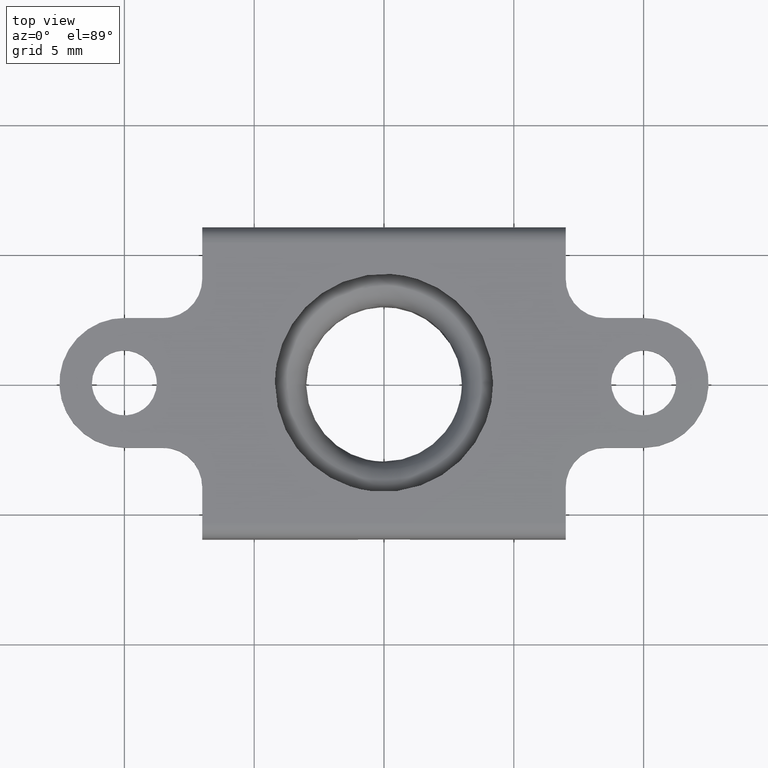
[diagram: clean part render]
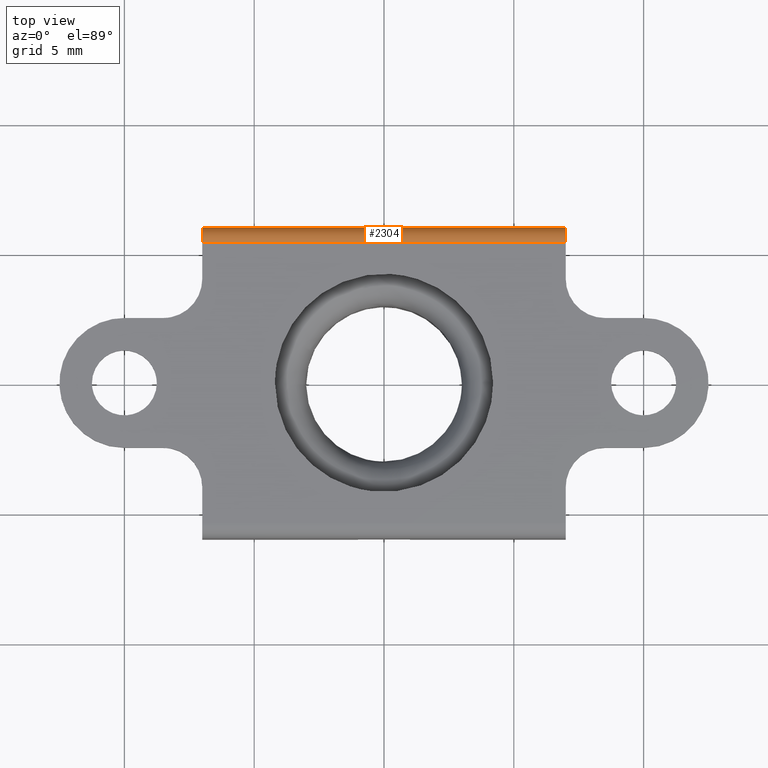
[diagram: same view with one face highlighted and labeled with its STEP entity id]
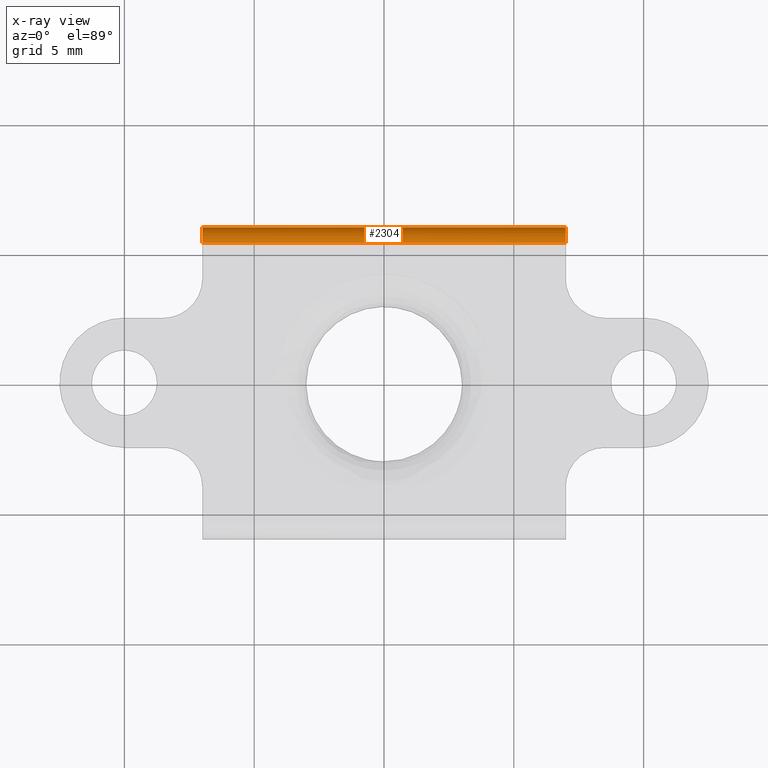
[diagram: x-ray of the same camera — body ghosted, the highlighted face saturated]
A machine part, top view. The second image highlights one B-rep face of the part: STEP entity #2304.
The next image is the same camera in x-ray: the body ghosted, the highlighted face saturated — about 0% of this face is hidden behind the body in this view.
In plain terms, the highlighted face is a freeform B-spline surface patch.
Its self-contained STEP definition (entity closure, byte-faithful):
#2244=CARTESIAN_POINT('',(-7.350000000000002,5.394764078700977,-0.000022846161497));
#2245=CARTESIAN_POINT('',(7.358750000000001,5.394764078700977,-0.000022846161497));
#2246=CARTESIAN_POINT('',(-7.350000000000001,6.038160805207053,0.005591992007727));
#2247=CARTESIAN_POINT('',(7.358750000000002,6.038160805207053,0.005591992007727));
#2248=CARTESIAN_POINT('',(-7.350000000000002,5.998880879053120,-0.636629123720915));
#2249=CARTESIAN_POINT('',(7.358750000000001,5.998880879053120,-0.636629123720915));
#2257=(BOUNDED_SURFACE()B_SPLINE_SURFACE(1,2,((#2244,#2246,#2248),(#2245,#2247,#2249)),.UNSPECIFIED.,.F.,.F.,.U.)B_SPLINE_SURFACE_WITH_KNOTS((2,2),(3,3),(0.0,14.708750000000000),(0.0,1.0),.UNSPECIFIED.)GEOMETRIC_REPRESENTATION_ITEM()RATIONAL_B_SPLINE_SURFACE(((1.0,0.681998360062499,1.0),(1.0,0.681998360062499,1.0)))REPRESENTATION_ITEM('')SURFACE());
#2258=CARTESIAN_POINT('',(-7.0,5.400000000000000,3.306437E-016));
#2259=VERTEX_POINT('',#2258);
#2260=CARTESIAN_POINT('',(-7.0,6.0,-0.600000000000000));
#2261=VERTEX_POINT('',#2260);
#2262=CARTESIAN_POINT('',(-7.0,5.400000000000000,0.0));
#2263=CARTESIAN_POINT('',(-6.999999999999999,6.0,0.0));
#2264=CARTESIAN_POINT('',(-7.0,6.0,-0.600000000000000));
#2272=(BOUNDED_CURVE()B_SPLINE_CURVE(2,(#2262,#2263,#2264),.UNSPECIFIED.,.F.,.U.)CURVE()GEOMETRIC_REPRESENTATION_ITEM()QUASI_UNIFORM_CURVE()RATIONAL_B_SPLINE_CURVE((1.0,0.707106781186547,1.0))REPRESENTATION_ITEM(''));
#2273=EDGE_CURVE('',#2259,#2261,#2272,.T.);
#2274=ORIENTED_EDGE('',*,*,#2273,.F.);
#2275=CARTESIAN_POINT('',(7.0,5.400000000000000,3.306437E-016));
#2276=VERTEX_POINT('',#2275);
#2277=CARTESIAN_POINT('',(7.0,5.400000000000000,3.306437E-016));
#2278=CARTESIAN_POINT('',(-7.0,5.400000000000000,3.306437E-016));
#2279=QUASI_UNIFORM_CURVE('',1,(#2277,#2278),.UNSPECIFIED.,.F.,.U.);
#2280=EDGE_CURVE('',#2276,#2259,#2279,.T.);
#2281=ORIENTED_EDGE('',*,*,#2280,.F.);
#2282=CARTESIAN_POINT('',(7.0,6.0,-0.600000000000000));
#2283=VERTEX_POINT('',#2282);
#2284=CARTESIAN_POINT('',(7.0,6.0,-0.600000000000000));
#2285=CARTESIAN_POINT('',(6.999999999999999,6.0,0.0));
#2286=CARTESIAN_POINT('',(7.0,5.400000000000000,0.0));
#2294=(BOUNDED_CURVE()B_SPLINE_CURVE(2,(#2284,#2285,#2286),.UNSPECIFIED.,.F.,.U.)CURVE()GEOMETRIC_REPRESENTATION_ITEM()QUASI_UNIFORM_CURVE()RATIONAL_B_SPLINE_CURVE((1.0,0.707106781186547,1.0))REPRESENTATION_ITEM(''));
#2295=EDGE_CURVE('',#2283,#2276,#2294,.T.);
#2296=ORIENTED_EDGE('',*,*,#2295,.F.);
#2297=CARTESIAN_POINT('',(-7.0,6.0,-0.600000000000000));
#2298=CARTESIAN_POINT('',(7.0,6.0,-0.600000000000000));
#2299=QUASI_UNIFORM_CURVE('',1,(#2297,#2298),.UNSPECIFIED.,.F.,.U.);
#2300=EDGE_CURVE('',#2261,#2283,#2299,.T.);
#2301=ORIENTED_EDGE('',*,*,#2300,.F.);
#2302=EDGE_LOOP('',(#2274,#2281,#2296,#2301));
#2303=FACE_OUTER_BOUND('',#2302,.T.);
#2304=ADVANCED_FACE('',(#2303),#2257,.T.);